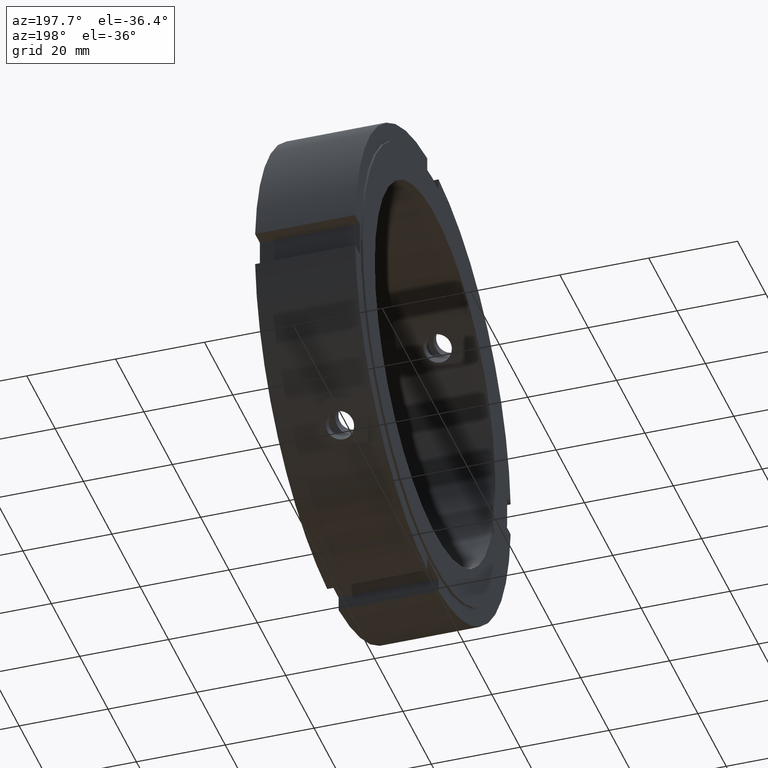
[diagram: clean part render]
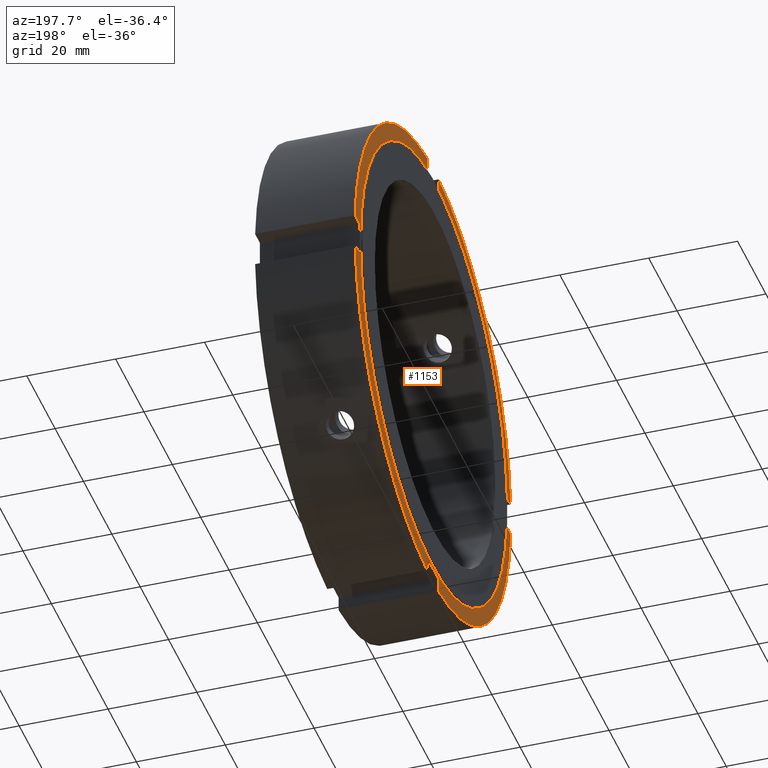
[diagram: same view with one face highlighted and labeled with its STEP entity id]
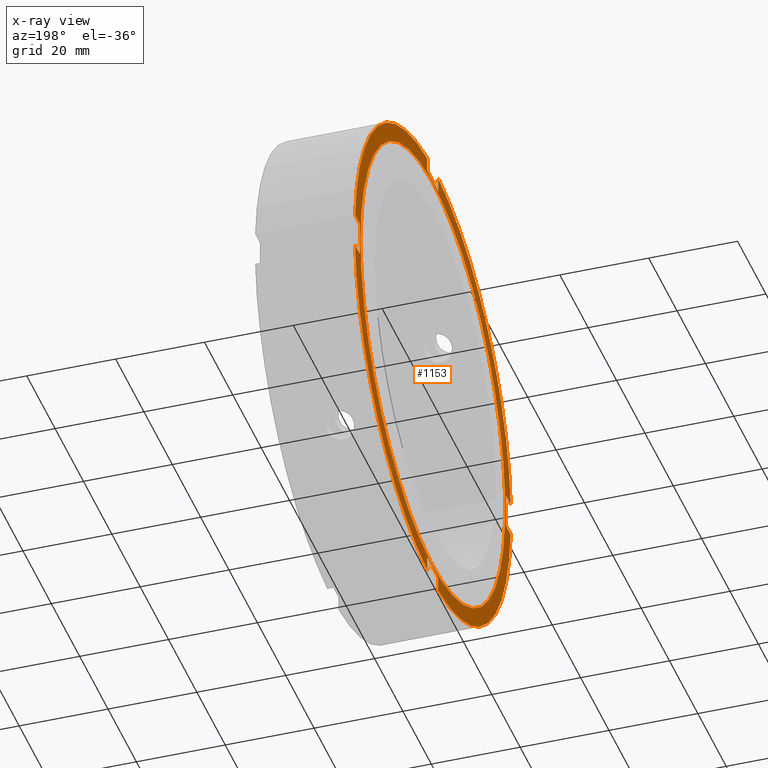
[diagram: x-ray of the same camera — body ghosted, the highlighted face saturated]
A machine part, auxiliary view. The second image highlights one B-rep face of the part: STEP entity #1153.
The next image is the same camera in x-ray: the body ghosted, the highlighted face saturated — about 0% of this face is hidden behind the body in this view.
In plain terms, the highlighted planar face has unit normal (-1, 0, 0).
Its self-contained STEP definition (entity closure, byte-faithful):
#533=CARTESIAN_POINT('',(0.499999999999985,-4.000000000000007,-51.499999999999993));
#534=VERTEX_POINT('',#533);
#535=CARTESIAN_POINT('',(0.499999999999985,-4.000000000000007,-54.854352607609911));
#536=VERTEX_POINT('',#535);
#537=CARTESIAN_POINT('',(0.499999999999985,-4.000000000000004,-51.499999999999993));
#538=DIRECTION('',(0.0,0.0,-1.0));
#539=VECTOR('',#538,3.354352607609918);
#540=LINE('',#537,#539);
#541=EDGE_CURVE('',#534,#536,#540,.T.);
#573=CARTESIAN_POINT('',(0.499999999999985,3.999999999999988,-54.854352607609911));
#574=VERTEX_POINT('',#573);
#575=CARTESIAN_POINT('',(0.499999999999985,3.999999999999988,-51.499999999999993));
#576=VERTEX_POINT('',#575);
#577=CARTESIAN_POINT('',(0.499999999999985,3.999999999999985,-54.854352607609911));
#578=DIRECTION('',(0.0,0.0,1.0));
#579=VECTOR('',#578,3.354352607609911);
#580=LINE('',#577,#579);
#581=EDGE_CURVE('',#574,#576,#580,.T.);
#613=CARTESIAN_POINT('',(0.499999999999985,3.999999999999993,-51.499999999999993));
#614=DIRECTION('',(0.0,-1.0,0.0));
#615=VECTOR('',#614,8.0);
#616=LINE('',#613,#615);
#617=EDGE_CURVE('',#576,#534,#616,.T.);
#635=CARTESIAN_POINT('',(0.499999999999985,-51.499999999999993,4.000000000000004));
#636=VERTEX_POINT('',#635);
#637=CARTESIAN_POINT('',(0.499999999999985,-54.854352607609911,4.000000000000004));
#638=VERTEX_POINT('',#637);
#639=CARTESIAN_POINT('',(0.499999999999985,-51.5,4.000000000000004));
#640=DIRECTION('',(0.0,-1.0,0.0));
#641=VECTOR('',#640,3.354352607609918);
#642=LINE('',#639,#641);
#643=EDGE_CURVE('',#636,#638,#642,.T.);
#675=CARTESIAN_POINT('',(0.499999999999985,-54.854352607609911,-3.999999999999991));
#676=VERTEX_POINT('',#675);
#677=CARTESIAN_POINT('',(0.499999999999985,-51.499999999999993,-3.999999999999991));
#678=VERTEX_POINT('',#677);
#679=CARTESIAN_POINT('',(0.499999999999985,-54.854352607609918,-3.999999999999991));
#680=DIRECTION('',(0.0,1.0,0.0));
#681=VECTOR('',#680,3.354352607609918);
#682=LINE('',#679,#681);
#683=EDGE_CURVE('',#676,#678,#682,.T.);
#715=CARTESIAN_POINT('',(0.499999999999985,-51.499999999999986,-3.999999999999991));
#716=DIRECTION('',(0.0,0.0,1.0));
#717=VECTOR('',#716,7.999999999999995);
#718=LINE('',#715,#717);
#719=EDGE_CURVE('',#678,#636,#718,.T.);
#737=CARTESIAN_POINT('',(0.499999999999985,4.000000000000001,51.499999999999993));
#738=VERTEX_POINT('',#737);
#739=CARTESIAN_POINT('',(0.499999999999985,4.000000000000001,54.854352607609911));
#740=VERTEX_POINT('',#739);
#741=CARTESIAN_POINT('',(0.499999999999985,4.000000000000005,51.499999999999993));
#742=DIRECTION('',(0.0,0.0,1.0));
#743=VECTOR('',#742,3.354352607609918);
#744=LINE('',#741,#743);
#745=EDGE_CURVE('',#738,#740,#744,.T.);
#777=CARTESIAN_POINT('',(0.499999999999985,-3.999999999999994,54.854352607609911));
#778=VERTEX_POINT('',#777);
#779=CARTESIAN_POINT('',(0.499999999999985,-3.999999999999994,51.499999999999993));
#780=VERTEX_POINT('',#779);
#781=CARTESIAN_POINT('',(0.499999999999985,-3.999999999999993,54.854352607609911));
#782=DIRECTION('',(0.0,0.0,-1.0));
#783=VECTOR('',#782,3.354352607609918);
#784=LINE('',#781,#783);
#785=EDGE_CURVE('',#778,#780,#784,.T.);
#817=CARTESIAN_POINT('',(0.499999999999985,-3.999999999999993,51.499999999999993));
#818=DIRECTION('',(0.0,1.0,0.0));
#819=VECTOR('',#818,7.999999999999993);
#820=LINE('',#817,#819);
#821=EDGE_CURVE('',#780,#738,#820,.T.);
#849=CARTESIAN_POINT('',(0.499999999999985,54.854352607609911,3.999999999999997));
#850=VERTEX_POINT('',#849);
#857=CARTESIAN_POINT('',(0.499999999999985,0.0,0.0));
#858=DIRECTION('',(1.0,0.0,0.0));
#859=DIRECTION('',(0.0,1.0,0.0));
#860=AXIS2_PLACEMENT_3D('',#857,#858,#859);
#861=CIRCLE('',#860,55.0);
#862=EDGE_CURVE('',#850,#740,#861,.T.);
#881=CARTESIAN_POINT('',(0.499999999999985,0.0,0.0));
#882=DIRECTION('',(1.0,0.0,0.0));
#883=DIRECTION('',(0.0,1.0,0.0));
#884=AXIS2_PLACEMENT_3D('',#881,#882,#883);
#885=CIRCLE('',#884,55.0);
#886=EDGE_CURVE('',#778,#638,#885,.T.);
#900=CARTESIAN_POINT('',(0.499999999999985,54.854352607609911,-3.999999999999997));
#901=VERTEX_POINT('',#900);
#902=CARTESIAN_POINT('',(0.499999999999985,0.0,0.0));
#903=DIRECTION('',(1.0,0.0,0.0));
#904=DIRECTION('',(0.0,1.0,0.0));
#905=AXIS2_PLACEMENT_3D('',#902,#903,#904);
#906=CIRCLE('',#905,55.0);
#907=EDGE_CURVE('',#574,#901,#906,.T.);
#944=CARTESIAN_POINT('',(0.499999999999985,0.0,0.0));
#945=DIRECTION('',(1.0,0.0,0.0));
#946=DIRECTION('',(0.0,1.0,0.0));
#947=AXIS2_PLACEMENT_3D('',#944,#945,#946);
#948=CIRCLE('',#947,55.0);
#949=EDGE_CURVE('',#676,#536,#948,.T.);
#1019=CARTESIAN_POINT('',(0.499999999999985,51.499999999999993,-3.999999999999997));
#1020=VERTEX_POINT('',#1019);
#1021=CARTESIAN_POINT('',(0.499999999999985,51.5,-3.999999999999997));
#1022=DIRECTION('',(0.0,1.0,0.0));
#1023=VECTOR('',#1022,3.354352607609918);
#1024=LINE('',#1021,#1023);
#1025=EDGE_CURVE('',#1020,#901,#1024,.T.);
#1043=CARTESIAN_POINT('',(0.499999999999985,51.499999999999993,3.999999999999997));
#1044=VERTEX_POINT('',#1043);
#1045=CARTESIAN_POINT('',(0.499999999999985,54.854352607609911,3.999999999999997));
#1046=DIRECTION('',(0.0,-1.0,0.0));
#1047=VECTOR('',#1046,3.354352607609918);
#1048=LINE('',#1045,#1047);
#1049=EDGE_CURVE('',#850,#1044,#1048,.T.);
#1067=CARTESIAN_POINT('',(0.499999999999985,51.499999999999986,3.999999999999997));
#1068=DIRECTION('',(0.0,0.0,-1.0));
#1069=VECTOR('',#1068,7.999999999999995);
#1070=LINE('',#1067,#1069);
#1071=EDGE_CURVE('',#1044,#1020,#1070,.T.);
#1112=CARTESIAN_POINT('',(0.499999999999985,51.000000000000007,0.0));
#1113=VERTEX_POINT('',#1112);
#1114=CARTESIAN_POINT('',(0.499999999999985,0.0,0.0));
#1115=DIRECTION('',(1.0,0.0,0.0));
#1116=DIRECTION('',(0.0,1.0,0.0));
#1117=AXIS2_PLACEMENT_3D('',#1114,#1115,#1116);
#1118=CIRCLE('',#1117,51.000000000000007);
#1119=EDGE_CURVE('',#1113,#1113,#1118,.T.);
#1127=CARTESIAN_POINT('',(0.499999999999985,53.000000000000007,0.0));
#1128=DIRECTION('',(-1.0,0.0,0.0));
#1129=DIRECTION('',(0.0,0.0,1.0));
#1130=AXIS2_PLACEMENT_3D('',#1127,#1128,#1129);
#1131=PLANE('',#1130);
#1132=ORIENTED_EDGE('',*,*,#541,.T.);
#1133=ORIENTED_EDGE('',*,*,#949,.F.);
#1134=ORIENTED_EDGE('',*,*,#683,.T.);
#1135=ORIENTED_EDGE('',*,*,#719,.T.);
#1136=ORIENTED_EDGE('',*,*,#643,.T.);
#1137=ORIENTED_EDGE('',*,*,#886,.F.);
#1138=ORIENTED_EDGE('',*,*,#785,.T.);
#1139=ORIENTED_EDGE('',*,*,#821,.T.);
#1140=ORIENTED_EDGE('',*,*,#745,.T.);
#1141=ORIENTED_EDGE('',*,*,#862,.F.);
#1142=ORIENTED_EDGE('',*,*,#1049,.T.);
#1143=ORIENTED_EDGE('',*,*,#1071,.T.);
#1144=ORIENTED_EDGE('',*,*,#1025,.T.);
#1145=ORIENTED_EDGE('',*,*,#907,.F.);
#1146=ORIENTED_EDGE('',*,*,#581,.T.);
#1147=ORIENTED_EDGE('',*,*,#617,.T.);
#1148=EDGE_LOOP('',(#1132,#1133,#1134,#1135,#1136,#1137,#1138,#1139,#1140,#1141,#1142,#1143,#1144,#1145,#1146,#1147));
#1149=FACE_OUTER_BOUND('',#1148,.T.);
#1150=ORIENTED_EDGE('',*,*,#1119,.T.);
#1151=EDGE_LOOP('',(#1150));
#1152=FACE_BOUND('',#1151,.T.);
#1153=ADVANCED_FACE('',(#1149,#1152),#1131,.T.);